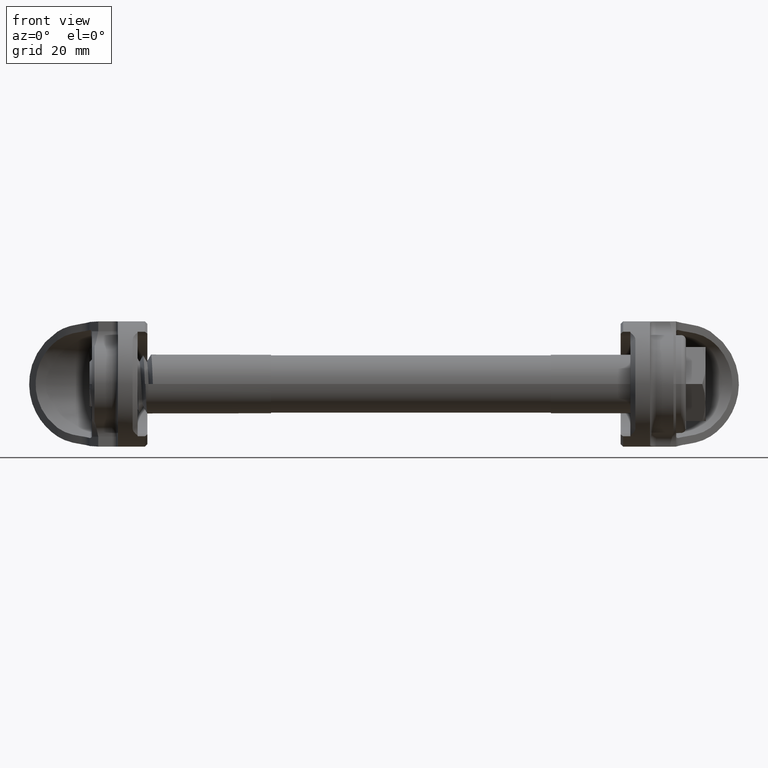
[diagram: clean part render]
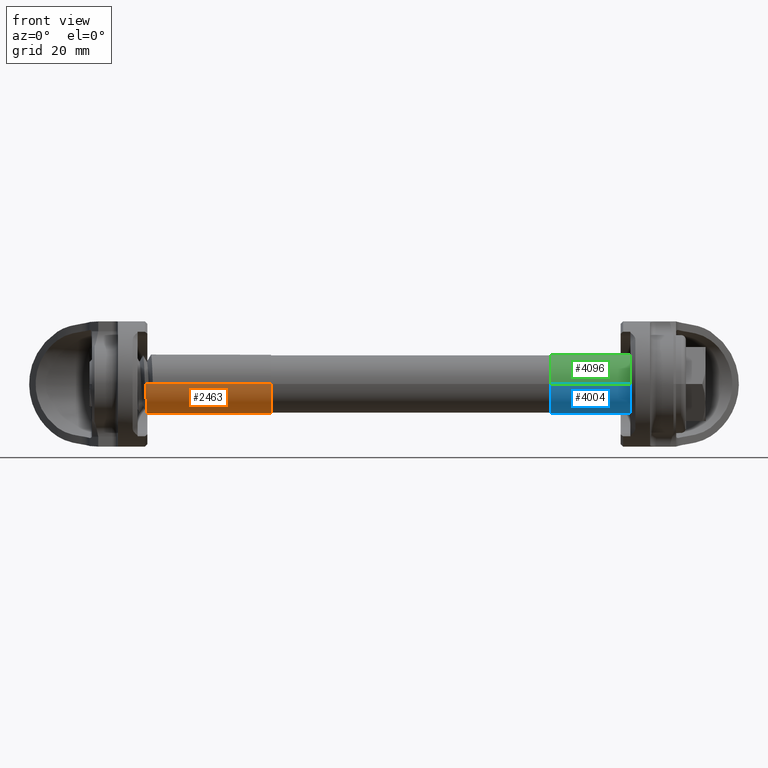
[diagram: same view with three faces highlighted in distinct colors, each labeled with its STEP entity id]
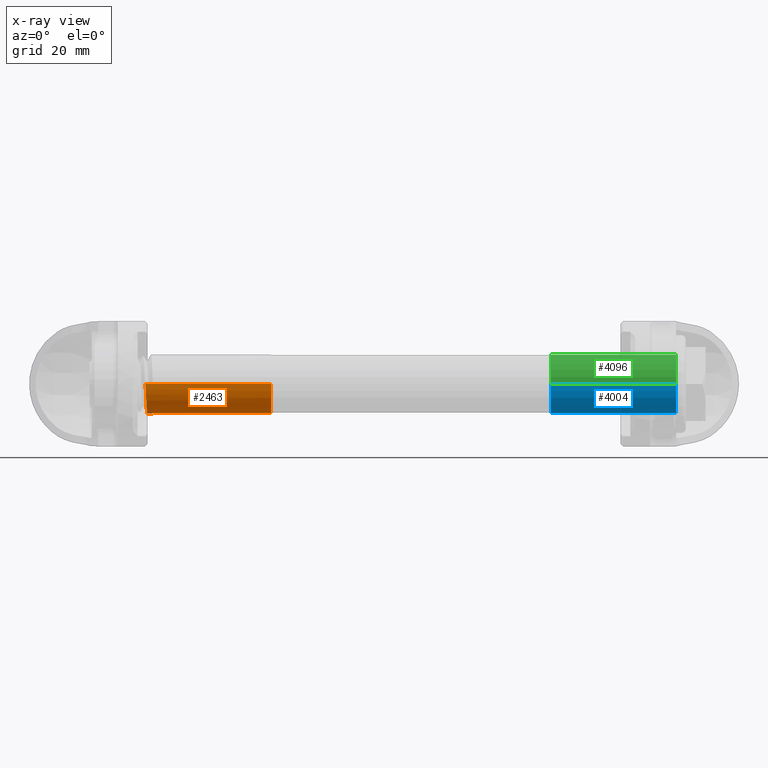
[diagram: x-ray of the same camera — body ghosted, the three highlighted faces saturated]
A machine part, front view with three faces highlighted in distinct colors.
The next image is the same camera in x-ray (body ghosted, the three faces saturated) — at least one of them is partly hidden behind the body in this view.
Their STEP definitions:

[orange] entity #2463 — the highlighted cylindrical surface (edge-blend (fillet) strip) has radius 5.9817 mm, axis along (-1, 0, 0).
#126 = DIRECTION ( 'NONE',  ( -1.000000000000000000, 0.0000000000000000000, -0.0000000000000000000 ) ) ;
#258 = ORIENTED_EDGE ( 'NONE', *, *, #1092, .F. ) ;
#391 =( BOUNDED_CURVE ( )  B_SPLINE_CURVE ( 2, ( #3987, #4562, #3793, #3656, #2188, #3479, #2401, #1572, #1394 ),
 .UNSPECIFIED., .F., .F. ) 
 B_SPLINE_CURVE_WITH_KNOTS ( ( 3, 2, 2, 2, 3 ),
 ( 0.5000000000000171000, 0.6250000000000128800, 0.7500000000000085500, 0.8750000000000042200, 1.000000000000000000 ),
 .UNSPECIFIED. ) 
 CURVE ( )  GEOMETRIC_REPRESENTATION_ITEM ( )  RATIONAL_B_SPLINE_CURVE ( ( 0.9999999999999895600, 0.9238795325112971700, 1.000000000000000000, 0.9238795325112867400, 1.000000000000000000, 0.9238795325112867400, 1.000000000000000000, 0.9238795325112867400, 1.000000000000000000 ) ) 
 REPRESENTATION_ITEM ( '' )  );
#586 = CARTESIAN_POINT ( 'NONE',  ( 12.10545989385824900, 3.031127959780480900E-016, -5.981699999999999100 ) ) ;
#634 = EDGE_CURVE ( 'NONE', #2054, #3121, #2922, .T. ) ;
#713 = VERTEX_POINT ( 'NONE', #1165 ) ;
#804 = EDGE_CURVE ( 'NONE', #3121, #713, #391, .T. ) ;
#885 = CARTESIAN_POINT ( 'NONE',  ( 119.0000000000000000, 0.0000000000000000000, 5.981699999999998200 ) ) ;
#908 = FACE_OUTER_BOUND ( 'NONE', #4281, .T. ) ;
#980 = CARTESIAN_POINT ( 'NONE',  ( 36.82999999999999800, 7.325469758459720600E-016, -5.981699999999998200 ) ) ;
#1092 = EDGE_CURVE ( 'NONE', #3723, #2054, #4217, .T. ) ;
#1134 = CARTESIAN_POINT ( 'NONE',  ( 119.0000000000000000, -6.258557040672574300E-013, 5.981699999999999100 ) ) ;
#1165 = CARTESIAN_POINT ( 'NONE',  ( 11.35545989385827800, -6.273193770001128700E-013, 5.981699999999999100 ) ) ;
#1278 = DIRECTION ( 'NONE',  ( -1.000000000000000000, 0.0000000000000000000, -0.0000000000000000000 ) ) ;
#1394 = CARTESIAN_POINT ( 'NONE',  ( 11.35545989385827800, -6.273193770001128700E-013, 5.981699999999999100 ) ) ;
#1429 = ORIENTED_EDGE ( 'NONE', *, *, #2242, .T. ) ;
#1456 = CYLINDRICAL_SURFACE ( 'NONE', #3270, 5.981699999999998200 ) ;
#1522 = CARTESIAN_POINT ( 'NONE',  ( 119.0000000000000000, 7.325469758459720600E-016, -5.981699999999998200 ) ) ;
#1572 = CARTESIAN_POINT ( 'NONE',  ( 11.44920989385826700, -2.477701266047769300, 5.981699999999739800 ) ) ;
#1735 = CARTESIAN_POINT ( 'NONE',  ( 119.0000000000000000, 0.0000000000000000000, 0.0000000000000000000 ) ) ;
#2054 = VERTEX_POINT ( 'NONE', #980 ) ;
#2188 = CARTESIAN_POINT ( 'NONE',  ( 11.73045989385826400, -5.981699999999998200, -6.314393452555577800E-013 ) ) ;
#2195 = ORIENTED_EDGE ( 'NONE', *, *, #804, .F. ) ;
#2220 = VECTOR ( 'NONE', #1278, 1000.000000000000000 ) ;
#2242 = EDGE_CURVE ( 'NONE', #3723, #4267, #2474, .T. ) ;
#2261 = CARTESIAN_POINT ( 'NONE',  ( 36.82999999999999800, 0.0000000000000000000, 0.0000000000000000000 ) ) ;
#2401 = CARTESIAN_POINT ( 'NONE',  ( 11.54295989385828500, -4.229700633024014800, 4.229700633023123000 ) ) ;
#2414 = VECTOR ( 'NONE', #126, 1000.000000000000000 ) ;
#2418 = LINE ( 'NONE', #1134, #3403 ) ;
#2447 = ORIENTED_EDGE ( 'NONE', *, *, #4953, .F. ) ;
#2463 = ADVANCED_FACE ( 'NONE', ( #908 ), #1456, .T. ) ;
#2474 = LINE ( 'NONE', #885, #2414 ) ;
#2922 = LINE ( 'NONE', #1522, #2220 ) ;
#3121 = VERTEX_POINT ( 'NONE', #586 ) ;
#3270 = AXIS2_PLACEMENT_3D ( 'NONE', #1735, #5016, #4998 ) ;
#3403 = VECTOR ( 'NONE', #4087, 1000.000000000000000 ) ;
#3479 = CARTESIAN_POINT ( 'NONE',  ( 11.63670989385828000, -5.981700000000258500, 2.477701266046514700 ) ) ;
#3656 = CARTESIAN_POINT ( 'NONE',  ( 11.82420989385826000, -5.981699999999739800, -2.477701266047768400 ) ) ;
#3672 = DIRECTION ( 'NONE',  ( 1.000000000000000000, 0.0000000000000000000, 0.0000000000000000000 ) ) ;
#3723 = VERTEX_POINT ( 'NONE', #5130 ) ;
#3787 = DIRECTION ( 'NONE',  ( 0.0000000000000000000, 0.0000000000000000000, -1.000000000000000000 ) ) ;
#3793 = CARTESIAN_POINT ( 'NONE',  ( 11.91795989385827100, -4.229700633023126600, -4.229700633024018300 ) ) ;
#3987 = CARTESIAN_POINT ( 'NONE',  ( 12.10545989385824900, 3.031127959780480900E-016, -5.981699999999999100 ) ) ;
#4087 = DIRECTION ( 'NONE',  ( 1.000000000000000000, -0.0000000000000000000, 0.0000000000000000000 ) ) ;
#4140 = CARTESIAN_POINT ( 'NONE',  ( 12.85545989385827800, -6.273193770001128700E-013, 5.981699999999999100 ) ) ;
#4217 = CIRCLE ( 'NONE', #5492, 5.981699999999998200 ) ;
#4267 = VERTEX_POINT ( 'NONE', #4140 ) ;
#4281 = EDGE_LOOP ( 'NONE', ( #5485, #258, #1429, #2447, #2195 ) ) ;
#4562 = CARTESIAN_POINT ( 'NONE',  ( 12.01170989385826200, -2.477701266046775900, -5.981699999999998200 ) ) ;
#4953 = EDGE_CURVE ( 'NONE', #713, #4267, #2418, .T. ) ;
#4998 = DIRECTION ( 'NONE',  ( 0.0000000000000000000, 0.0000000000000000000, 1.000000000000000000 ) ) ;
#5016 = DIRECTION ( 'NONE',  ( -1.000000000000000000, 0.0000000000000000000, -0.0000000000000000000 ) ) ;
#5130 = CARTESIAN_POINT ( 'NONE',  ( 36.82999999999999800, 0.0000000000000000000, 5.981699999999998200 ) ) ;
#5485 = ORIENTED_EDGE ( 'NONE', *, *, #634, .F. ) ;
#5492 = AXIS2_PLACEMENT_3D ( 'NONE', #2261, #3672, #3787 ) ;

[blue] entity #4004 — the highlighted cylindrical surface (edge-blend (fillet) strip) has radius 5.9817 mm, axis along (-1, 0, 0).
#137 = CARTESIAN_POINT ( 'NONE',  ( 93.59999999999999400, 7.325469758459720600E-016, -5.981699999999998200 ) ) ;
#216 = CARTESIAN_POINT ( 'NONE',  ( 93.59999999999999400, 0.0000000000000000000, 0.0000000000000000000 ) ) ;
#588 = ORIENTED_EDGE ( 'NONE', *, *, #4214, .F. ) ;
#865 = LINE ( 'NONE', #1154, #2790 ) ;
#917 = CIRCLE ( 'NONE', #2828, 5.981699999999998200 ) ;
#942 = CARTESIAN_POINT ( 'NONE',  ( 119.0000000000000000, 7.325469758459720600E-016, -5.981699999999998200 ) ) ;
#977 = DIRECTION ( 'NONE',  ( 0.0000000000000000000, 0.0000000000000000000, 1.000000000000000000 ) ) ;
#1016 = CARTESIAN_POINT ( 'NONE',  ( 93.59999999999999400, 0.0000000000000000000, 5.981699999999998200 ) ) ;
#1144 = DIRECTION ( 'NONE',  ( -1.000000000000000000, 0.0000000000000000000, 0.0000000000000000000 ) ) ;
#1154 = CARTESIAN_POINT ( 'NONE',  ( 119.0000000000000000, 7.325469758459720600E-016, -5.981699999999998200 ) ) ;
#1222 = EDGE_CURVE ( 'NONE', #4119, #2185, #917, .T. ) ;
#1353 = ORIENTED_EDGE ( 'NONE', *, *, #1222, .F. ) ;
#1461 = CARTESIAN_POINT ( 'NONE',  ( 119.0000000000000000, 0.0000000000000000000, 5.981699999999998200 ) ) ;
#1650 = EDGE_LOOP ( 'NONE', ( #588, #2870, #2309, #1353 ) ) ;
#1678 = DIRECTION ( 'NONE',  ( -1.000000000000000000, 0.0000000000000000000, -0.0000000000000000000 ) ) ;
#1840 = EDGE_CURVE ( 'NONE', #4840, #2186, #4976, .T. ) ;
#2029 = AXIS2_PLACEMENT_3D ( 'NONE', #4377, #3969, #4395 ) ;
#2185 = VERTEX_POINT ( 'NONE', #1016 ) ;
#2186 = VERTEX_POINT ( 'NONE', #942 ) ;
#2273 = DIRECTION ( 'NONE',  ( -1.000000000000000000, 0.0000000000000000000, -0.0000000000000000000 ) ) ;
#2309 = ORIENTED_EDGE ( 'NONE', *, *, #5238, .T. ) ;
#2432 = CARTESIAN_POINT ( 'NONE',  ( 119.0000000000000000, 0.0000000000000000000, 0.0000000000000000000 ) ) ;
#2594 = FACE_OUTER_BOUND ( 'NONE', #1650, .T. ) ;
#2790 = VECTOR ( 'NONE', #4981, 1000.000000000000000 ) ;
#2828 = AXIS2_PLACEMENT_3D ( 'NONE', #216, #1144, #977 ) ;
#2870 = ORIENTED_EDGE ( 'NONE', *, *, #1840, .F. ) ;
#2961 = CARTESIAN_POINT ( 'NONE',  ( 119.0000000000000000, 0.0000000000000000000, 5.981699999999998200 ) ) ;
#3009 = VECTOR ( 'NONE', #1678, 1000.000000000000000 ) ;
#3129 = DIRECTION ( 'NONE',  ( 0.0000000000000000000, 0.0000000000000000000, 1.000000000000000000 ) ) ;
#3592 = CYLINDRICAL_SURFACE ( 'NONE', #5406, 5.981699999999998200 ) ;
#3969 = DIRECTION ( 'NONE',  ( 1.000000000000000000, 0.0000000000000000000, 0.0000000000000000000 ) ) ;
#4004 = ADVANCED_FACE ( 'NONE', ( #2594 ), #3592, .T. ) ;
#4119 = VERTEX_POINT ( 'NONE', #137 ) ;
#4202 = LINE ( 'NONE', #2961, #3009 ) ;
#4214 = EDGE_CURVE ( 'NONE', #2186, #4119, #865, .T. ) ;
#4377 = CARTESIAN_POINT ( 'NONE',  ( 119.0000000000000000, 0.0000000000000000000, 0.0000000000000000000 ) ) ;
#4395 = DIRECTION ( 'NONE',  ( 0.0000000000000000000, 0.0000000000000000000, -1.000000000000000000 ) ) ;
#4840 = VERTEX_POINT ( 'NONE', #1461 ) ;
#4976 = CIRCLE ( 'NONE', #2029, 5.981699999999998200 ) ;
#4981 = DIRECTION ( 'NONE',  ( -1.000000000000000000, 0.0000000000000000000, -0.0000000000000000000 ) ) ;
#5238 = EDGE_CURVE ( 'NONE', #4840, #2185, #4202, .T. ) ;
#5406 = AXIS2_PLACEMENT_3D ( 'NONE', #2432, #2273, #3129 ) ;

[green] entity #4096 — the highlighted cylindrical surface (edge-blend (fillet) strip) has radius 5.9817 mm, axis along (-1, 0, 0).
#137 = CARTESIAN_POINT ( 'NONE',  ( 93.59999999999999400, 7.325469758459720600E-016, -5.981699999999998200 ) ) ;
#229 = CIRCLE ( 'NONE', #2473, 5.981699999999998200 ) ;
#234 = ORIENTED_EDGE ( 'NONE', *, *, #4214, .T. ) ;
#375 = ORIENTED_EDGE ( 'NONE', *, *, #672, .F. ) ;
#672 = EDGE_CURVE ( 'NONE', #2186, #4840, #229, .T. ) ;
#865 = LINE ( 'NONE', #1154, #2790 ) ;
#942 = CARTESIAN_POINT ( 'NONE',  ( 119.0000000000000000, 7.325469758459720600E-016, -5.981699999999998200 ) ) ;
#951 = EDGE_CURVE ( 'NONE', #2185, #4119, #1361, .T. ) ;
#1016 = CARTESIAN_POINT ( 'NONE',  ( 93.59999999999999400, 0.0000000000000000000, 5.981699999999998200 ) ) ;
#1045 = DIRECTION ( 'NONE',  ( 0.0000000000000000000, 0.0000000000000000000, -1.000000000000000000 ) ) ;
#1154 = CARTESIAN_POINT ( 'NONE',  ( 119.0000000000000000, 7.325469758459720600E-016, -5.981699999999998200 ) ) ;
#1156 = CYLINDRICAL_SURFACE ( 'NONE', #1586, 5.981699999999998200 ) ;
#1361 = CIRCLE ( 'NONE', #2360, 5.981699999999998200 ) ;
#1461 = CARTESIAN_POINT ( 'NONE',  ( 119.0000000000000000, 0.0000000000000000000, 5.981699999999998200 ) ) ;
#1586 = AXIS2_PLACEMENT_3D ( 'NONE', #2123, #5151, #1959 ) ;
#1590 = FACE_OUTER_BOUND ( 'NONE', #2038, .T. ) ;
#1678 = DIRECTION ( 'NONE',  ( -1.000000000000000000, 0.0000000000000000000, -0.0000000000000000000 ) ) ;
#1959 = DIRECTION ( 'NONE',  ( 0.0000000000000000000, 0.0000000000000000000, 1.000000000000000000 ) ) ;
#2038 = EDGE_LOOP ( 'NONE', ( #375, #234, #2244, #2293 ) ) ;
#2075 = CARTESIAN_POINT ( 'NONE',  ( 93.59999999999999400, 0.0000000000000000000, 0.0000000000000000000 ) ) ;
#2123 = CARTESIAN_POINT ( 'NONE',  ( 119.0000000000000000, 0.0000000000000000000, 0.0000000000000000000 ) ) ;
#2185 = VERTEX_POINT ( 'NONE', #1016 ) ;
#2186 = VERTEX_POINT ( 'NONE', #942 ) ;
#2244 = ORIENTED_EDGE ( 'NONE', *, *, #951, .F. ) ;
#2293 = ORIENTED_EDGE ( 'NONE', *, *, #5238, .F. ) ;
#2360 = AXIS2_PLACEMENT_3D ( 'NONE', #2075, #4090, #2744 ) ;
#2473 = AXIS2_PLACEMENT_3D ( 'NONE', #2673, #3295, #1045 ) ;
#2673 = CARTESIAN_POINT ( 'NONE',  ( 119.0000000000000000, 0.0000000000000000000, 0.0000000000000000000 ) ) ;
#2744 = DIRECTION ( 'NONE',  ( 0.0000000000000000000, 0.0000000000000000000, 1.000000000000000000 ) ) ;
#2790 = VECTOR ( 'NONE', #4981, 1000.000000000000000 ) ;
#2961 = CARTESIAN_POINT ( 'NONE',  ( 119.0000000000000000, 0.0000000000000000000, 5.981699999999998200 ) ) ;
#3009 = VECTOR ( 'NONE', #1678, 1000.000000000000000 ) ;
#3295 = DIRECTION ( 'NONE',  ( 1.000000000000000000, 0.0000000000000000000, 0.0000000000000000000 ) ) ;
#4090 = DIRECTION ( 'NONE',  ( -1.000000000000000000, 0.0000000000000000000, 0.0000000000000000000 ) ) ;
#4096 = ADVANCED_FACE ( 'NONE', ( #1590 ), #1156, .T. ) ;
#4119 = VERTEX_POINT ( 'NONE', #137 ) ;
#4202 = LINE ( 'NONE', #2961, #3009 ) ;
#4214 = EDGE_CURVE ( 'NONE', #2186, #4119, #865, .T. ) ;
#4840 = VERTEX_POINT ( 'NONE', #1461 ) ;
#4981 = DIRECTION ( 'NONE',  ( -1.000000000000000000, 0.0000000000000000000, -0.0000000000000000000 ) ) ;
#5151 = DIRECTION ( 'NONE',  ( -1.000000000000000000, 0.0000000000000000000, -0.0000000000000000000 ) ) ;
#5238 = EDGE_CURVE ( 'NONE', #4840, #2185, #4202, .T. ) ;